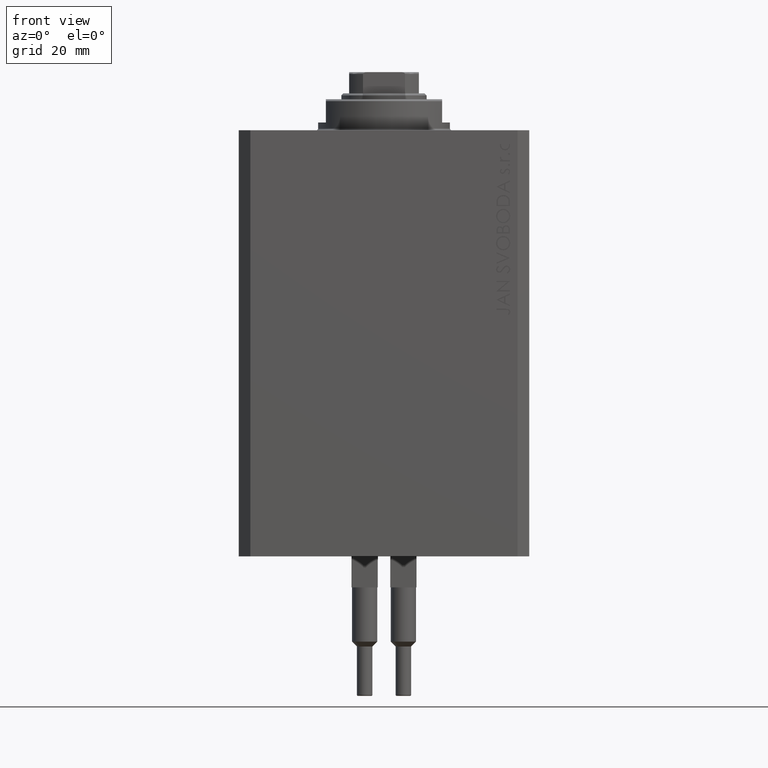
[diagram: clean part render]
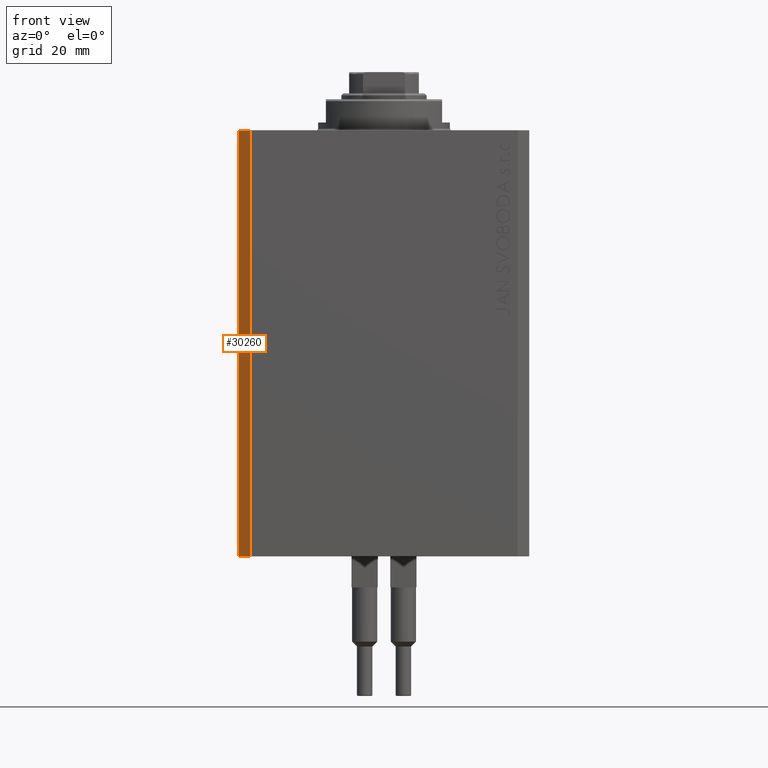
[diagram: same view with one face highlighted and labeled with its STEP entity id]
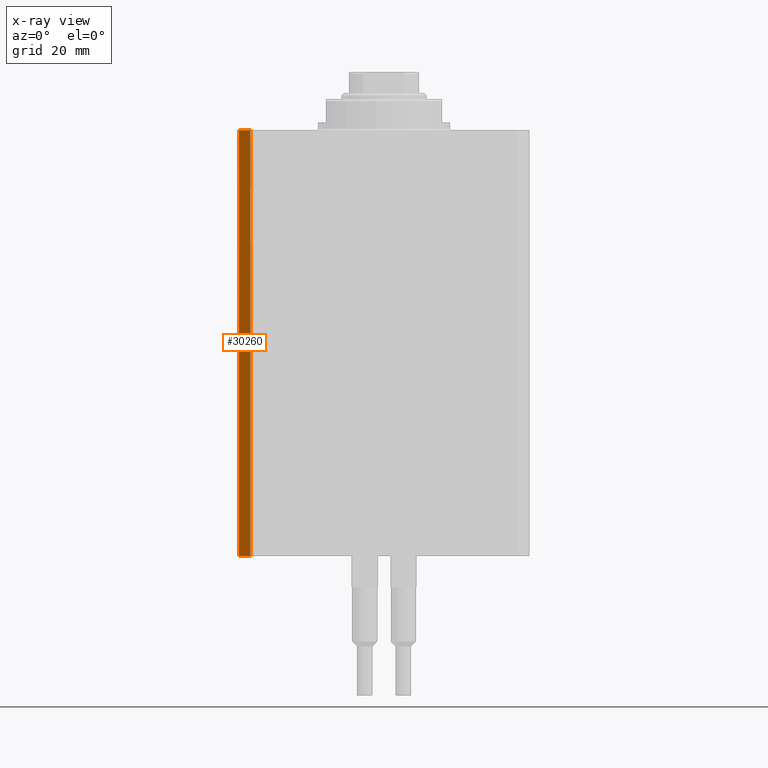
[diagram: x-ray of the same camera — body ghosted, the highlighted face saturated]
A machine part, front view. The second image highlights one B-rep face of the part: STEP entity #30260.
The next image is the same camera in x-ray: the body ghosted, the highlighted face saturated — about 0% of this face is hidden behind the body in this view.
In plain terms, the highlighted planar face has unit normal (-0.7071, -0.7071, 0).
Its self-contained STEP definition (entity closure, byte-faithful):
#439 = VERTEX_POINT ( 'NONE', #36807 ) ;
#689 = CARTESIAN_POINT ( 'NONE',  ( -34.49999999999998579, -27.49999999999999645, 0.000000000000000000 ) ) ;
#1062 = EDGE_CURVE ( 'NONE', #15981, #7687, #19288, .T. ) ;
#1110 = DIRECTION ( 'NONE',  ( 0.7071067811865483499, -0.7071067811865466846, 0.000000000000000000 ) ) ;
#2667 = LINE ( 'NONE', #7035, #39911 ) ;
#3268 = AXIS2_PLACEMENT_3D ( 'NONE', #38014, #20497, #1110 ) ;
#4310 = VECTOR ( 'NONE', #39850, 1000.000000000000000 ) ;
#5203 = CARTESIAN_POINT ( 'NONE',  ( -34.49999999999998579, -27.49999999999999645, -110.0000000000000000 ) ) ;
#5235 = PLANE ( 'NONE',  #3268 ) ;
#6323 = EDGE_CURVE ( 'NONE', #15936, #7687, #37932, .T. ) ;
#7035 = CARTESIAN_POINT ( 'NONE',  ( -37.49999999999999289, -24.50000000000000000, -110.0000000000000000 ) ) ;
#7311 = LINE ( 'NONE', #29398, #4310 ) ;
#7687 = VERTEX_POINT ( 'NONE', #689 ) ;
#8710 = ORIENTED_EDGE ( 'NONE', *, *, #1062, .T. ) ;
#11621 = ORIENTED_EDGE ( 'NONE', *, *, #22079, .T. ) ;
#12765 = FACE_OUTER_BOUND ( 'NONE', #15432, .T. ) ;
#14301 = EDGE_CURVE ( 'NONE', #439, #15936, #7311, .T. ) ;
#15432 = EDGE_LOOP ( 'NONE', ( #16228, #22242, #11621, #8710 ) ) ;
#15936 = VERTEX_POINT ( 'NONE', #23632 ) ;
#15981 = VERTEX_POINT ( 'NONE', #5203 ) ;
#16146 = VECTOR ( 'NONE', #18354, 1000.000000000000000 ) ;
#16228 = ORIENTED_EDGE ( 'NONE', *, *, #6323, .F. ) ;
#18354 = DIRECTION ( 'NONE',  ( 0.000000000000000000, 0.000000000000000000, 1.000000000000000000 ) ) ;
#19288 = LINE ( 'NONE', #45063, #16146 ) ;
#20497 = DIRECTION ( 'NONE',  ( -0.7071067811865466846, -0.7071067811865483499, 0.000000000000000000 ) ) ;
#22079 = EDGE_CURVE ( 'NONE', #439, #15981, #2667, .T. ) ;
#22242 = ORIENTED_EDGE ( 'NONE', *, *, #14301, .F. ) ;
#23341 = CARTESIAN_POINT ( 'NONE',  ( -37.49999999999999289, -24.50000000000000000, 0.000000000000000000 ) ) ;
#23632 = CARTESIAN_POINT ( 'NONE',  ( -37.49999999999999289, -24.50000000000000000, 0.000000000000000000 ) ) ;
#27224 = DIRECTION ( 'NONE',  ( 0.7071067811865483499, -0.7071067811865466846, 0.000000000000000000 ) ) ;
#29398 = CARTESIAN_POINT ( 'NONE',  ( -37.49999999999999289, -24.50000000000000000, -110.0000000000000000 ) ) ;
#30260 = ADVANCED_FACE ( 'NONE', ( #12765 ), #5235, .T. ) ;
#36411 = DIRECTION ( 'NONE',  ( 0.7071067811865483499, -0.7071067811865466846, 0.000000000000000000 ) ) ;
#36807 = CARTESIAN_POINT ( 'NONE',  ( -37.49999999999999289, -24.50000000000000000, -110.0000000000000000 ) ) ;
#37932 = LINE ( 'NONE', #23341, #45136 ) ;
#38014 = CARTESIAN_POINT ( 'NONE',  ( -37.49999999999999289, -24.50000000000000000, -110.0000000000000000 ) ) ;
#39850 = DIRECTION ( 'NONE',  ( 0.000000000000000000, 0.000000000000000000, 1.000000000000000000 ) ) ;
#39911 = VECTOR ( 'NONE', #36411, 1000.000000000000000 ) ;
#45063 = CARTESIAN_POINT ( 'NONE',  ( -34.49999999999998579, -27.49999999999999645, -110.0000000000000000 ) ) ;
#45136 = VECTOR ( 'NONE', #27224, 1000.000000000000000 ) ;